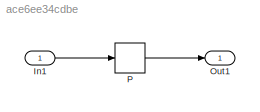
MODEL slx_ace6ee34cdbe
KIND model
CONFIG AbsTol = auto
CONFIG EnableMultiTasking = off
CONFIG FixedStep = auto
CONFIG MaxStep = auto
CONFIG MinStep = auto
CONFIG RelTol = 1e-3
CONFIG SampleTimeConstraint = Unconstrained
CONFIG Solver = FixedStepDiscrete
CONFIG SolverName = FixedStepDiscrete
CONFIG StartTime = 0.0
CONFIG StopTime = 10.0
BLOCK [Inport] In1
  IconDisplay = Port number
  OutDataTypeStr = single
  PortDimensions = 5
BLOCK [Outport] Out1
  IconDisplay = Port number
BLOCK [Lookup_n-D] P
  BreakpointsForDimension1 = [60.1661169546859;69.7432034699909]
  BreakpointsForDimension1DataTypeStr = uint8
  BreakpointsForDimension2 = [6.90624062036999;38.7586094427258;53.1759908352178;62.8252554756451;91.1399928336912]
  BreakpointsForDimension2DataTypeStr = uint8
  BreakpointsForDimension3 = [22.6760797621743;41.5384047514422;76.7914041449175]
  BreakpointsForDimension3DataTypeStr = uint8
  BreakpointsForDimension4 = [17.2589417342063;61.6189823941485]
  BreakpointsForDimension4DataTypeStr = uint8
  BreakpointsForDimension5 = [1.98551198948525;15.7636169690772;85.5038104339279]
  BreakpointsForDimension5DataTypeStr = uint8
  ExtrapMethod = Clip
  FractionDataTypeStr = single
  IntermediateResultsDataTypeStr = uint16
  InternalRulePriority = Speed
  NumberOfTableDimensions = 5
  OutDataTypeStr = uint32
  Ports = [1, 1]
  RndMeth = Convergent
  SaturateOnIntegerOverflow = on
  Table = reshape(repmat([4 5 6 7 8;16 19 20 21 22;10 18 23 24 25],6,2),[2,5,3,2,3])
  TableDataTypeStr = Inherit: Inherit from 'Table data'
  UseOneInputPortForAllInputData = on
LINE In1:1 -> P:1
LINE P:1 -> Out1:1
